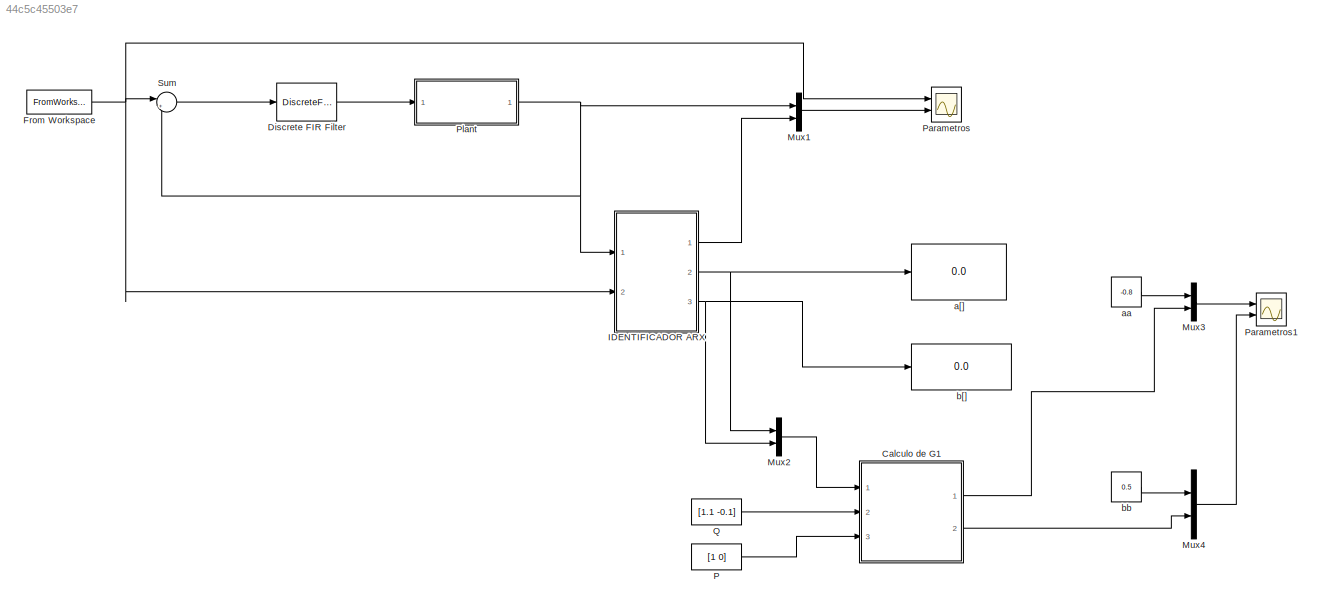
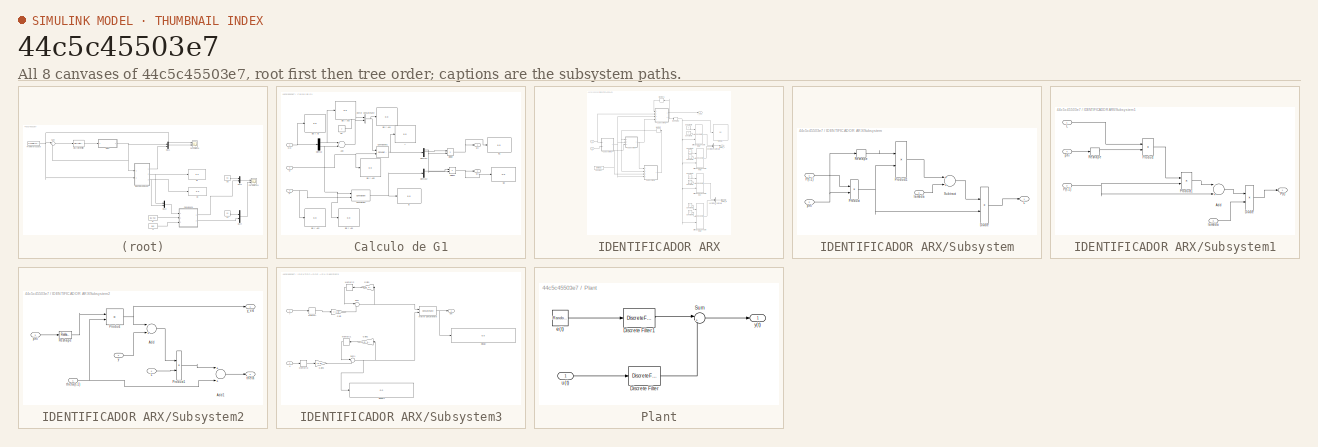
[diagram: thumbnail index - all 8 canvases of the model, root first then tree order]
MODEL slx_44c5c45503e7
KIND model
CONFIG AbsTol = auto
CONFIG FixedStep = auto
CONFIG MaxStep = auto
CONFIG MinStep = auto
CONFIG RelTol = 1e-3
CONFIG SampleTimeConstraint = Unconstrained
CONFIG Solver = ode45
CONFIG SolverMode = Auto
CONFIG SolverName = ode45
CONFIG StartTime = 0.0
CONFIG StopTime = 1000
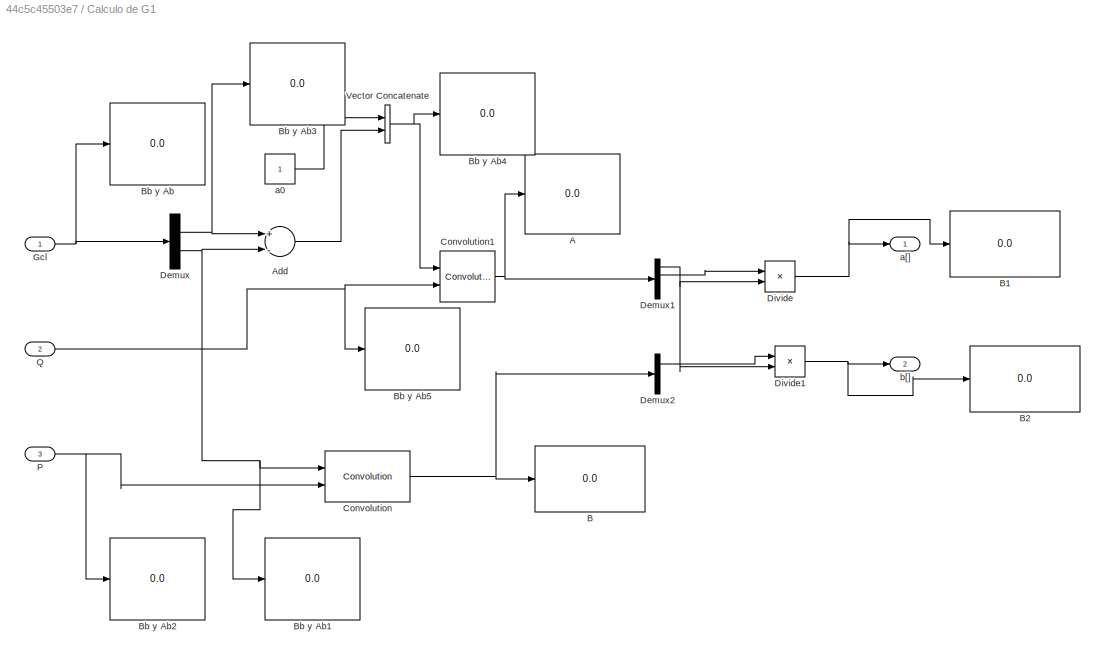
BLOCK [SubSystem] Calculo de G1
  Ports = [3, 2]
  RequestExecContextInheritance = off
BLOCK [Display] Calculo de G1/A
  Decimation = 1
  Ports = [1]
BLOCK [Sum] Calculo de G1/Add
  InputSameDT = off
  Inputs = +-
  OutDataTypeStr = Inherit: Inherit via internal rule
  Ports = [2, 1]
  SaturateOnIntegerOverflow = off
BLOCK [Display] Calculo de G1/B
  Decimation = 1
  Ports = [1]
BLOCK [Display] Calculo de G1/B1
  Decimation = 1
  Ports = [1]
BLOCK [Display] Calculo de G1/B2
  Decimation = 1
  Ports = [1]
BLOCK [Display] Calculo de G1/Bb y Ab
  Decimation = 1
  Ports = [1]
BLOCK [Display] Calculo de G1/Bb y Ab1
  Decimation = 1
  Ports = [1]
BLOCK [Display] Calculo de G1/Bb y Ab2
  Decimation = 1
  Ports = [1]
BLOCK [Display] Calculo de G1/Bb y Ab3
  Decimation = 1
  Ports = [1]
BLOCK [Display] Calculo de G1/Bb y Ab4
  Decimation = 1
  Ports = [1]
BLOCK [Display] Calculo de G1/Bb y Ab5
  Decimation = 1
  Ports = [1]
BLOCK [Reference] Calculo de G1/Convolution  REF=dspsigops/Convolution
  LockScale = off
  Ports = [2, 1]
  SourceBlock = dspsigops/Convolution
  SourceType = Convolution
  accumDataTypeStr = Inherit: Inherit via internal rule
  accumFracLength = 30
  accumLastDataTypeStr = Inherit: Inherit via internal rule
  accumMode = Inherit via internal rule
  accumWordLength = 32
  additionalParams = off
  allowOverrides = on
  domain = Time
  outputDataTypeStr = Inherit: Same as accumulator
  outputFracLength = 15
  outputLastDataTypeStr = Inherit: Same as accumulator
  outputMax = []
  outputMin = []
  outputMode = Same as accumulator
  outputWordLength = 16
  overflowMode = off
  prodOutputDataTypeStr = Inherit: Inherit via internal rule
  prodOutputFracLength = 30
  prodOutputLastDataTypeStr = Inherit: Inherit via internal rule
  prodOutputMode = Inherit via internal rule
  prodOutputWordLength = 32
  roundingMode = Floor
BLOCK [Reference] Calculo de G1/Convolution1  REF=dspsigops/Convolution
  LockScale = off
  Ports = [2, 1]
  SourceBlock = dspsigops/Convolution
  SourceType = Convolution
  accumDataTypeStr = Inherit: Inherit via internal rule
  accumFracLength = 30
  accumLastDataTypeStr = Inherit: Inherit via internal rule
  accumMode = Inherit via internal rule
  accumWordLength = 32
  additionalParams = off
  allowOverrides = on
  domain = Time
  outputDataTypeStr = Inherit: Same as accumulator
  outputFracLength = 15
  outputLastDataTypeStr = Inherit: Same as accumulator
  outputMax = []
  outputMin = []
  outputMode = Same as accumulator
  outputWordLength = 16
  overflowMode = off
  prodOutputDataTypeStr = Inherit: Inherit via internal rule
  prodOutputFracLength = 30
  prodOutputLastDataTypeStr = Inherit: Inherit via internal rule
  prodOutputMode = Inherit via internal rule
  prodOutputWordLength = 32
  roundingMode = Floor
BLOCK [Demux] Calculo de G1/Demux
  DisplayOption = bar
  Outputs = 2
  Ports = [1, 2]
BLOCK [Demux] Calculo de G1/Demux1
  DisplayOption = bar
  Ports = [1, 4]
BLOCK [Demux] Calculo de G1/Demux2
  DisplayOption = bar
  Outputs = 3
  Ports = [1, 3]
BLOCK [Product] Calculo de G1/Divide
  InputSameDT = off
  Inputs = */
  OutDataTypeStr = Inherit: Inherit via internal rule
  Ports = [2, 1]
  RndMeth = Floor
  SaturateOnIntegerOverflow = off
BLOCK [Product] Calculo de G1/Divide1
  InputSameDT = off
  Inputs = */
  OutDataTypeStr = Inherit: Inherit via internal rule
  Ports = [2, 1]
  RndMeth = Floor
  SaturateOnIntegerOverflow = off
BLOCK [Inport] Calculo de G1/Gcl
  IconDisplay = Port number
BLOCK [Inport] Calculo de G1/P
  IconDisplay = Port number
  Port = 3
BLOCK [Inport] Calculo de G1/Q
  IconDisplay = Port number
  Port = 2
BLOCK [Concatenate] Calculo de G1/Vector Concatenate
  Ports = [2, 1]
BLOCK [Constant] Calculo de G1/a0
BLOCK [Outport] Calculo de G1/a[]
  IconDisplay = Port number
BLOCK [Outport] Calculo de G1/b[]
  IconDisplay = Port number
  Port = 2
BLOCK [DiscreteFir] Discrete FIR Filter
  Coefficients = [1.1 -0.1]
  Ports = [1, 1]
  SampleTime = 0.1
BLOCK [FromWorkspace] From Workspace
  VariableName = prbs
  ZeroCross = on
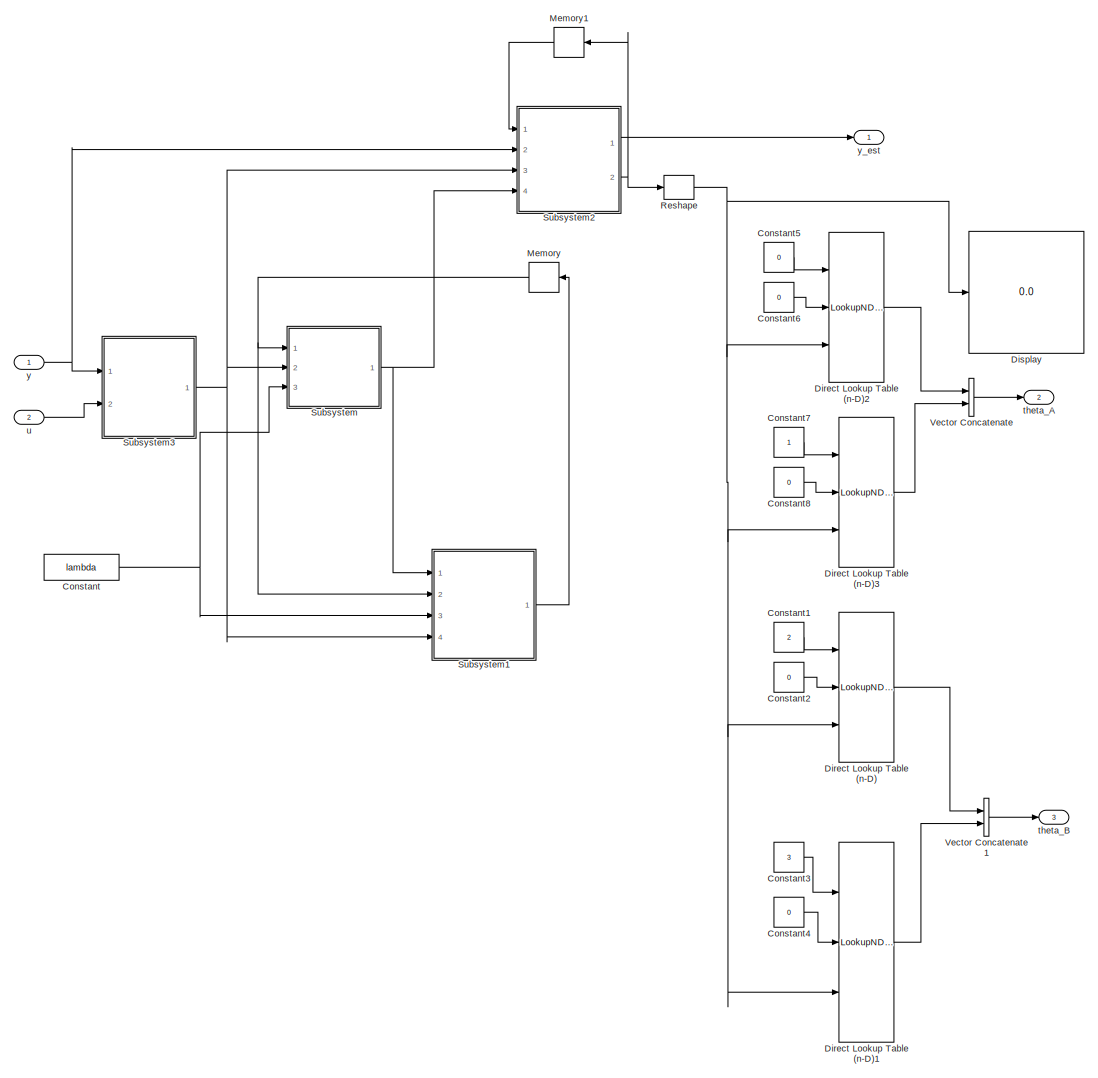
[diagram: IDENTIFICADOR ARX - part 1/1, most of the canvas]
BLOCK [SubSystem] IDENTIFICADOR ARX
  Ports = [2, 3]
  RequestExecContextInheritance = off
BLOCK [Constant] IDENTIFICADOR ARX/Constant
  Value = lambda
BLOCK [Constant] IDENTIFICADOR ARX/Constant1
  Value = 2
BLOCK [Constant] IDENTIFICADOR ARX/Constant2
  Value = 0
BLOCK [Constant] IDENTIFICADOR ARX/Constant3
  Value = 3
BLOCK [Constant] IDENTIFICADOR ARX/Constant4
  Value = 0
BLOCK [Constant] IDENTIFICADOR ARX/Constant5
  Value = 0
BLOCK [Constant] IDENTIFICADOR ARX/Constant6
  Value = 0
BLOCK [Constant] IDENTIFICADOR ARX/Constant7
BLOCK [Constant] IDENTIFICADOR ARX/Constant8
  Value = 0
BLOCK [LookupNDDirect] IDENTIFICADOR ARX/Direct Lookup Table (n-D)
  DiagnosticForOutOfRangeInput = Error
  Ports = [3, 1]
  Table = [4 5 ;16 19 ]
  TableIsInput = on
BLOCK [LookupNDDirect] IDENTIFICADOR ARX/Direct Lookup Table (n-D)1
  DiagnosticForOutOfRangeInput = Error
  Ports = [3, 1]
  Table = [4 5 ;16 19 ]
  TableIsInput = on
BLOCK [LookupNDDirect] IDENTIFICADOR ARX/Direct Lookup Table (n-D)2
  DiagnosticForOutOfRangeInput = Error
  Ports = [3, 1]
  Table = [4 5 ;16 19 ]
  TableIsInput = on
BLOCK [LookupNDDirect] IDENTIFICADOR ARX/Direct Lookup Table (n-D)3
  DiagnosticForOutOfRangeInput = Error
  Ports = [3, 1]
  Table = [4 5 ;16 19 ]
  TableIsInput = on
BLOCK [Display] IDENTIFICADOR ARX/Display
  Decimation = 1
  Ports = [1]
BLOCK [Memory] IDENTIFICADOR ARX/Memory
  X0 = 1e6*eye(4)
BLOCK [Memory] IDENTIFICADOR ARX/Memory1
BLOCK [Reshape] IDENTIFICADOR ARX/Reshape
  OutputDimensionality = Column vector (2-D)
  Ports = [1, 1]
BLOCK [SubSystem] IDENTIFICADOR ARX/Subsystem
  Ports = [3, 1]
  RequestExecContextInheritance = off
BLOCK [Product] IDENTIFICADOR ARX/Subsystem/Divide
  InputSameDT = off
  Inputs = /*
  OutDataTypeStr = Inherit: Inherit via internal rule
  Ports = [2, 1]
  RndMeth = Floor
  SaturateOnIntegerOverflow = off
BLOCK [Outport] IDENTIFICADOR ARX/Subsystem/L
  IconDisplay = Port number
BLOCK [Inport] IDENTIFICADOR ARX/Subsystem/P(t-1)
  IconDisplay = Port number
BLOCK [Product] IDENTIFICADOR ARX/Subsystem/Product
  InputSameDT = off
  Multiplication = Matrix(*)
  OutDataTypeStr = Inherit: Inherit via internal rule
  Ports = [2, 1]
  RndMeth = Floor
  SaturateOnIntegerOverflow = off
BLOCK [Product] IDENTIFICADOR ARX/Subsystem/Product1
  InputSameDT = off
  Multiplication = Matrix(*)
  OutDataTypeStr = Inherit: Inherit via internal rule
  Ports = [2, 1]
  RndMeth = Floor
  SaturateOnIntegerOverflow = off
BLOCK [Reshape] IDENTIFICADOR ARX/Subsystem/Reshape
  OutputDimensionality = Row vector (2-D)
  Ports = [1, 1]
BLOCK [Sum] IDENTIFICADOR ARX/Subsystem/Subtract
  InputSameDT = off
  OutDataTypeStr = Inherit: Inherit via internal rule
  Ports = [2, 1]
  SaturateOnIntegerOverflow = off
BLOCK [Inport] IDENTIFICADOR ARX/Subsystem/lambda
  IconDisplay = Port number
  Port = 3
BLOCK [Inport] IDENTIFICADOR ARX/Subsystem/phi
  IconDisplay = Port number
  Port = 2
BLOCK [SubSystem] IDENTIFICADOR ARX/Subsystem1
  Ports = [4, 1]
  RequestExecContextInheritance = off
BLOCK [Sum] IDENTIFICADOR ARX/Subsystem1/Add
  InputSameDT = off
  Inputs = -+
  OutDataTypeStr = Inherit: Inherit via internal rule
  Ports = [2, 1]
  SaturateOnIntegerOverflow = off
BLOCK [Product] IDENTIFICADOR ARX/Subsystem1/Divide
  InputSameDT = off
  Inputs = */
  OutDataTypeStr = Inherit: Inherit via internal rule
  Ports = [2, 1]
  RndMeth = Floor
  SaturateOnIntegerOverflow = off
BLOCK [Inport] IDENTIFICADOR ARX/Subsystem1/L
  IconDisplay = Port number
BLOCK [Outport] IDENTIFICADOR ARX/Subsystem1/P(t)
  IconDisplay = Port number
BLOCK [Inport] IDENTIFICADOR ARX/Subsystem1/P(t-1)
  IconDisplay = Port number
  Port = 2
BLOCK [Product] IDENTIFICADOR ARX/Subsystem1/Product
  InputSameDT = off
  Multiplication = Matrix(*)
  OutDataTypeStr = Inherit: Inherit via internal rule
  Ports = [2, 1]
  RndMeth = Floor
  SaturateOnIntegerOverflow = off
BLOCK [Product] IDENTIFICADOR ARX/Subsystem1/Product1
  InputSameDT = off
  Multiplication = Matrix(*)
  OutDataTypeStr = Inherit: Inherit via internal rule
  Ports = [2, 1]
  RndMeth = Floor
  SaturateOnIntegerOverflow = off
BLOCK [Reshape] IDENTIFICADOR ARX/Subsystem1/Reshape
  OutputDimensionality = Row vector (2-D)
  Ports = [1, 1]
BLOCK [Inport] IDENTIFICADOR ARX/Subsystem1/lambda
  IconDisplay = Port number
  Port = 3
BLOCK [Inport] IDENTIFICADOR ARX/Subsystem1/phi
  IconDisplay = Port number
  Port = 4
BLOCK [SubSystem] IDENTIFICADOR ARX/Subsystem2
  Ports = [4, 2]
  RequestExecContextInheritance = off
BLOCK [Sum] IDENTIFICADOR ARX/Subsystem2/Add
  InputSameDT = off
  Inputs = -+
  OutDataTypeStr = Inherit: Inherit via internal rule
  Ports = [2, 1]
  SaturateOnIntegerOverflow = off
BLOCK [Sum] IDENTIFICADOR ARX/Subsystem2/Add1
  InputSameDT = off
  OutDataTypeStr = Inherit: Inherit via internal rule
  Ports = [2, 1]
  SaturateOnIntegerOverflow = off
BLOCK [Inport] IDENTIFICADOR ARX/Subsystem2/L
  IconDisplay = Port number
  Port = 4
BLOCK [Product] IDENTIFICADOR ARX/Subsystem2/Product
  InputSameDT = off
  Multiplication = Matrix(*)
  OutDataTypeStr = Inherit: Inherit via internal rule
  Ports = [2, 1]
  RndMeth = Floor
  SaturateOnIntegerOverflow = off
BLOCK [Product] IDENTIFICADOR ARX/Subsystem2/Product1
  InputSameDT = off
  OutDataTypeStr = Inherit: Inherit via internal rule
  Ports = [2, 1]
  RndMeth = Floor
  SaturateOnIntegerOverflow = off
BLOCK [Reshape] IDENTIFICADOR ARX/Subsystem2/Reshape
  OutputDimensionality = Row vector (2-D)
  Ports = [1, 1]
BLOCK [Inport] IDENTIFICADOR ARX/Subsystem2/phi
  IconDisplay = Port number
  Port = 3
BLOCK [Outport] IDENTIFICADOR ARX/Subsystem2/theta
  IconDisplay = Port number
  Port = 2
BLOCK [Inport] IDENTIFICADOR ARX/Subsystem2/theta(t-1)
  IconDisplay = Port number
BLOCK [Inport] IDENTIFICADOR ARX/Subsystem2/y
  IconDisplay = Port number
  Port = 2
BLOCK [Outport] IDENTIFICADOR ARX/Subsystem2/y_est
  IconDisplay = Port number
BLOCK [SubSystem] IDENTIFICADOR ARX/Subsystem3
  Ports = [2, 1]
  RequestExecContextInheritance = off
BLOCK [Display] IDENTIFICADOR ARX/Subsystem3/Display
  Decimation = 1
  Ports = [1]
BLOCK [Display] IDENTIFICADOR ARX/Subsystem3/Display1
  Decimation = 1
  Ports = [1]
BLOCK [Gain] IDENTIFICADOR ARX/Subsystem3/Gain
  Gain = [-1 0]'
  Multiplication = Matrix(K*u)
  OutDataTypeStr = Inherit: Inherit via internal rule
  ParamDataTypeStr = Inherit: Inherit via internal rule
  SaturateOnIntegerOverflow = off
BLOCK [Gain] IDENTIFICADOR ARX/Subsystem3/Gain1
  Gain = [0 0; 1 0]
  Multiplication = Matrix(K*u)
  OutDataTypeStr = Inherit: Inherit via internal rule
  ParamDataTypeStr = Inherit: Inherit via internal rule
  SaturateOnIntegerOverflow = off
BLOCK [Gain] IDENTIFICADOR ARX/Subsystem3/Gain2
  Gain = [0 0; 1 0]
  Multiplication = Matrix(K*u)
  OutDataTypeStr = Inherit: Inherit via internal rule
  ParamDataTypeStr = Inherit: Inherit via internal rule
  SaturateOnIntegerOverflow = off
BLOCK [Gain] IDENTIFICADOR ARX/Subsystem3/Gain3
  Gain = [1 0]'
  Multiplication = Matrix(K*u)
  OutDataTypeStr = Inherit: Inherit via internal rule
  ParamDataTypeStr = Inherit: Inherit via internal rule
  SaturateOnIntegerOverflow = off
BLOCK [Concatenate] IDENTIFICADOR ARX/Subsystem3/Matrix Concatenate
  Mode = Multidimensional array
  Ports = [2, 1]
BLOCK [Memory] IDENTIFICADOR ARX/Subsystem3/Memory
BLOCK [Memory] IDENTIFICADOR ARX/Subsystem3/Memory1
BLOCK [Memory] IDENTIFICADOR ARX/Subsystem3/Memory2
BLOCK [Memory] IDENTIFICADOR ARX/Subsystem3/Memory3
BLOCK [Sum] IDENTIFICADOR ARX/Subsystem3/Sum
  IconShape = round
  InputSameDT = off
  Inputs = |++
  OutDataTypeStr = Inherit: Inherit via internal rule
  Ports = [2, 1]
  SaturateOnIntegerOverflow = off
BLOCK [Sum] IDENTIFICADOR ARX/Subsystem3/Sum1
  IconShape = round
  InputSameDT = off
  Inputs = |++
  OutDataTypeStr = Inherit: Inherit via internal rule
  Ports = [2, 1]
  SaturateOnIntegerOverflow = off
BLOCK [Outport] IDENTIFICADOR ARX/Subsystem3/phi
  IconDisplay = Port number
BLOCK [Inport] IDENTIFICADOR ARX/Subsystem3/u
  IconDisplay = Port number
  Port = 2
BLOCK [Inport] IDENTIFICADOR ARX/Subsystem3/y
  IconDisplay = Port number
BLOCK [Concatenate] IDENTIFICADOR ARX/Vector Concatenate
  Ports = [2, 1]
BLOCK [Concatenate] IDENTIFICADOR ARX/Vector Concatenate1
  Ports = [2, 1]
BLOCK [Outport] IDENTIFICADOR ARX/theta_A
  IconDisplay = Port number
  Port = 2
BLOCK [Outport] IDENTIFICADOR ARX/theta_B
  IconDisplay = Port number
  Port = 3
BLOCK [Inport] IDENTIFICADOR ARX/u
  IconDisplay = Port number
  Port = 2
BLOCK [Inport] IDENTIFICADOR ARX/y
  IconDisplay = Port number
BLOCK [Outport] IDENTIFICADOR ARX/y_est
  IconDisplay = Port number
BLOCK [Mux] Mux1
  DisplayOption = bar
  Inputs = 2
  Ports = [2, 1]
BLOCK [Mux] Mux2
  DisplayOption = bar
  Inputs = 2
  Ports = [2, 1]
BLOCK [Mux] Mux3
  DisplayOption = bar
  Inputs = 2
  Ports = [2, 1]
BLOCK [Mux] Mux4
  DisplayOption = bar
  Inputs = 2
  Ports = [2, 1]
BLOCK [Constant] P
  Value = [1 0]
BLOCK [Scope] Parametros
  DataFormat = StructureWithTime
  Floating = off
  LimitDataPoints = off
  NumInputPorts = 2
  Ports = [2]
  SampleTime = 0
  TimeRange = 100
  YMax = 5~10
  YMin = 0~-0.5
BLOCK [Scope] Parametros1
  DataFormat = StructureWithTime
  Floating = off
  NumInputPorts = 2
  Ports = [2]
  SampleTime = 0
  SaveName = ScopeData1
  YMax = 5~5
  YMin = -5~-5
BLOCK [SubSystem] Plant
  Ports = [1, 1]
  RequestExecContextInheritance = off
BLOCK [DiscreteFilter] Plant/Discrete Filter
  Denominator = [1 -0.8]
  InputPortMap = u0
  Numerator = [0.5]
  Ports = [1, 1]
BLOCK [DiscreteFilter] Plant/Discrete Filter1
  Denominator = [1]
  InputPortMap = u0
  Ports = [1, 1]
  SampleTime = 0.1
BLOCK [Sum] Plant/Sum
  IconShape = round
  InputSameDT = off
  Inputs = |++
  OutDataTypeStr = Inherit: Inherit via internal rule
  Ports = [2, 1]
  SaturateOnIntegerOverflow = off
BLOCK [RandomNumber] Plant/e(t)
  Variance = 0.003
BLOCK [Inport] Plant/u(t)
  IconDisplay = Port number
BLOCK [Outport] Plant/y(t)
  IconDisplay = Port number
BLOCK [Constant] Q
  Value = [1.1 -0.1]
BLOCK [Sum] Sum
  IconShape = round
  InputSameDT = off
  Inputs = |+-
  OutDataTypeStr = Inherit: Inherit via internal rule
  Ports = [2, 1]
  SaturateOnIntegerOverflow = off
BLOCK [Display] a[]
  Decimation = 1
  Ports = [1]
BLOCK [Constant] aa
  Value = -0.8
BLOCK [Display] b[]
  Decimation = 1
  Ports = [1]
BLOCK [Constant] bb
  Value = 0.5
LINE Calculo de G1/Add:1 -> Calculo de G1/Vector Concatenate:2
NET Calculo de G1/Convolution1:1 -> Calculo de G1/A:1, Calculo de G1/Demux1:1
NET Calculo de G1/Convolution:1 -> Calculo de G1/B:1, Calculo de G1/Demux2:1
NET Calculo de G1/Demux1:1 -> Calculo de G1/Divide1:2, Calculo de G1/Divide:2
LINE Calculo de G1/Demux1:2 -> Calculo de G1/Divide:1
LINE Calculo de G1/Demux2:1 -> Calculo de G1/Divide1:1
NET Calculo de G1/Demux:1 -> Calculo de G1/Add:1, Calculo de G1/Bb y Ab3:1
NET Calculo de G1/Demux:2 -> Calculo de G1/Add:2, Calculo de G1/Bb y Ab1:1, Calculo de G1/Convolution:1
NET Calculo de G1/Divide1:1 -> Calculo de G1/B2:1, Calculo de G1/b[]:1
NET Calculo de G1/Divide:1 -> Calculo de G1/B1:1, Calculo de G1/a[]:1
NET Calculo de G1/Gcl:1 -> Calculo de G1/Bb y Ab:1, Calculo de G1/Demux:1
NET Calculo de G1/P:1 -> Calculo de G1/Bb y Ab2:1, Calculo de G1/Convolution:2
NET Calculo de G1/Q:1 -> Calculo de G1/Bb y Ab5:1, Calculo de G1/Convolution1:2
NET Calculo de G1/Vector Concatenate:1 -> Calculo de G1/Bb y Ab4:1, Calculo de G1/Convolution1:1
LINE Calculo de G1/a0:1 -> Calculo de G1/Vector Concatenate:1
LINE Calculo de G1:1 -> Mux3:2
LINE Calculo de G1:2 -> Mux4:2
LINE Discrete FIR Filter:1 -> Plant:1
NET From Workspace:1 -> IDENTIFICADOR ARX:2, Parametros:1, Sum:1
LINE IDENTIFICADOR ARX/Constant1:1 -> IDENTIFICADOR ARX/Direct Lookup Table (n-D):1
LINE IDENTIFICADOR ARX/Constant2:1 -> IDENTIFICADOR ARX/Direct Lookup Table (n-D):2
LINE IDENTIFICADOR ARX/Constant3:1 -> IDENTIFICADOR ARX/Direct Lookup Table (n-D)1:1
LINE IDENTIFICADOR ARX/Constant4:1 -> IDENTIFICADOR ARX/Direct Lookup Table (n-D)1:2
LINE IDENTIFICADOR ARX/Constant5:1 -> IDENTIFICADOR ARX/Direct Lookup Table (n-D)2:1
LINE IDENTIFICADOR ARX/Constant6:1 -> IDENTIFICADOR ARX/Direct Lookup Table (n-D)2:2
LINE IDENTIFICADOR ARX/Constant7:1 -> IDENTIFICADOR ARX/Direct Lookup Table (n-D)3:1
LINE IDENTIFICADOR ARX/Constant8:1 -> IDENTIFICADOR ARX/Direct Lookup Table (n-D)3:2
NET IDENTIFICADOR ARX/Constant:1 -> IDENTIFICADOR ARX/Subsystem1:3, IDENTIFICADOR ARX/Subsystem:3
LINE IDENTIFICADOR ARX/Direct Lookup Table (n-D)1:1 -> IDENTIFICADOR ARX/Vector Concatenate1:2
LINE IDENTIFICADOR ARX/Direct Lookup Table (n-D)2:1 -> IDENTIFICADOR ARX/Vector Concatenate:1
LINE IDENTIFICADOR ARX/Direct Lookup Table (n-D)3:1 -> IDENTIFICADOR ARX/Vector Concatenate:2
LINE IDENTIFICADOR ARX/Direct Lookup Table (n-D):1 -> IDENTIFICADOR ARX/Vector Concatenate1:1
LINE IDENTIFICADOR ARX/Memory1:1 -> IDENTIFICADOR ARX/Subsystem2:1
NET IDENTIFICADOR ARX/Memory:1 -> IDENTIFICADOR ARX/Subsystem1:2, IDENTIFICADOR ARX/Subsystem:1
NET IDENTIFICADOR ARX/Reshape:1 -> IDENTIFICADOR ARX/Direct Lookup Table (n-D)1:3, IDENTIFICADOR ARX/Direct Lookup Table (n-D)2:3, IDENTIFICADOR ARX/Direct Lookup Table (n-D)3:3, IDENTIFICADOR ARX/Direct Lookup Table (n-D):3, IDENTIFICADOR ARX/Display:1
LINE IDENTIFICADOR ARX/Subsystem/Divide:1 -> IDENTIFICADOR ARX/Subsystem/L:1
LINE IDENTIFICADOR ARX/Subsystem/P(t-1):1 -> IDENTIFICADOR ARX/Subsystem/Product:1
LINE IDENTIFICADOR ARX/Subsystem/Product1:1 -> IDENTIFICADOR ARX/Subsystem/Subtract:1
NET IDENTIFICADOR ARX/Subsystem/Product:1 -> IDENTIFICADOR ARX/Subsystem/Divide:2, IDENTIFICADOR ARX/Subsystem/Product1:2
LINE IDENTIFICADOR ARX/Subsystem/Reshape:1 -> IDENTIFICADOR ARX/Subsystem/Product1:1
LINE IDENTIFICADOR ARX/Subsystem/Subtract:1 -> IDENTIFICADOR ARX/Subsystem/Divide:1
LINE IDENTIFICADOR ARX/Subsystem/lambda:1 -> IDENTIFICADOR ARX/Subsystem/Subtract:2
NET IDENTIFICADOR ARX/Subsystem/phi:1 -> IDENTIFICADOR ARX/Subsystem/Product:2, IDENTIFICADOR ARX/Subsystem/Reshape:1
LINE IDENTIFICADOR ARX/Subsystem1/Add:1 -> IDENTIFICADOR ARX/Subsystem1/Divide:1
LINE IDENTIFICADOR ARX/Subsystem1/Divide:1 -> IDENTIFICADOR ARX/Subsystem1/P(t):1
LINE IDENTIFICADOR ARX/Subsystem1/L:1 -> IDENTIFICADOR ARX/Subsystem1/Product:1
NET IDENTIFICADOR ARX/Subsystem1/P(t-1):1 -> IDENTIFICADOR ARX/Subsystem1/Add:2, IDENTIFICADOR ARX/Subsystem1/Product1:2
LINE IDENTIFICADOR ARX/Subsystem1/Product1:1 -> IDENTIFICADOR ARX/Subsystem1/Add:1
LINE IDENTIFICADOR ARX/Subsystem1/Product:1 -> IDENTIFICADOR ARX/Subsystem1/Product1:1
LINE IDENTIFICADOR ARX/Subsystem1/Reshape:1 -> IDENTIFICADOR ARX/Subsystem1/Product:2
LINE IDENTIFICADOR ARX/Subsystem1/lambda:1 -> IDENTIFICADOR ARX/Subsystem1/Divide:2
LINE IDENTIFICADOR ARX/Subsystem1/phi:1 -> IDENTIFICADOR ARX/Subsystem1/Reshape:1
LINE IDENTIFICADOR ARX/Subsystem1:1 -> IDENTIFICADOR ARX/Memory:1
LINE IDENTIFICADOR ARX/Subsystem2/Add1:1 -> IDENTIFICADOR ARX/Subsystem2/theta:1
LINE IDENTIFICADOR ARX/Subsystem2/Add:1 -> IDENTIFICADOR ARX/Subsystem2/Product1:1
LINE IDENTIFICADOR ARX/Subsystem2/L:1 -> IDENTIFICADOR ARX/Subsystem2/Product1:2
LINE IDENTIFICADOR ARX/Subsystem2/Product1:1 -> IDENTIFICADOR ARX/Subsystem2/Add1:1
NET IDENTIFICADOR ARX/Subsystem2/Product:1 -> IDENTIFICADOR ARX/Subsystem2/Add:1, IDENTIFICADOR ARX/Subsystem2/y_est:1
LINE IDENTIFICADOR ARX/Subsystem2/Reshape:1 -> IDENTIFICADOR ARX/Subsystem2/Product:1
LINE IDENTIFICADOR ARX/Subsystem2/phi:1 -> IDENTIFICADOR ARX/Subsystem2/Reshape:1
NET IDENTIFICADOR ARX/Subsystem2/theta(t-1):1 -> IDENTIFICADOR ARX/Subsystem2/Add1:2, IDENTIFICADOR ARX/Subsystem2/Product:2
LINE IDENTIFICADOR ARX/Subsystem2/y:1 -> IDENTIFICADOR ARX/Subsystem2/Add:2
LINE IDENTIFICADOR ARX/Subsystem2:1 -> IDENTIFICADOR ARX/y_est:1
NET IDENTIFICADOR ARX/Subsystem2:2 -> IDENTIFICADOR ARX/Memory1:1, IDENTIFICADOR ARX/Reshape:1
LINE IDENTIFICADOR ARX/Subsystem3/Gain1:1 -> IDENTIFICADOR ARX/Subsystem3/Memory2:1
LINE IDENTIFICADOR ARX/Subsystem3/Gain2:1 -> IDENTIFICADOR ARX/Subsystem3/Memory1:1
LINE IDENTIFICADOR ARX/Subsystem3/Gain3:1 -> IDENTIFICADOR ARX/Subsystem3/Sum1:2
LINE IDENTIFICADOR ARX/Subsystem3/Gain:1 -> IDENTIFICADOR ARX/Subsystem3/Sum:2
NET IDENTIFICADOR ARX/Subsystem3/Matrix Concatenate:1 -> IDENTIFICADOR ARX/Subsystem3/Display:1, IDENTIFICADOR ARX/Subsystem3/phi:1
LINE IDENTIFICADOR ARX/Subsystem3/Memory1:1 -> IDENTIFICADOR ARX/Subsystem3/Sum1:1
LINE IDENTIFICADOR ARX/Subsystem3/Memory2:1 -> IDENTIFICADOR ARX/Subsystem3/Sum:1
LINE IDENTIFICADOR ARX/Subsystem3/Memory3:1 -> IDENTIFICADOR ARX/Subsystem3/Gain3:1
LINE IDENTIFICADOR ARX/Subsystem3/Memory:1 -> IDENTIFICADOR ARX/Subsystem3/Gain:1
NET IDENTIFICADOR ARX/Subsystem3/Sum1:1 -> IDENTIFICADOR ARX/Subsystem3/Display1:1, IDENTIFICADOR ARX/Subsystem3/Gain2:1, IDENTIFICADOR ARX/Subsystem3/Matrix Concatenate:2
NET IDENTIFICADOR ARX/Subsystem3/Sum:1 -> IDENTIFICADOR ARX/Subsystem3/Gain1:1, IDENTIFICADOR ARX/Subsystem3/Matrix Concatenate:1
LINE IDENTIFICADOR ARX/Subsystem3/u:1 -> IDENTIFICADOR ARX/Subsystem3/Memory3:1
LINE IDENTIFICADOR ARX/Subsystem3/y:1 -> IDENTIFICADOR ARX/Subsystem3/Memory:1
NET IDENTIFICADOR ARX/Subsystem3:1 -> IDENTIFICADOR ARX/Subsystem1:4, IDENTIFICADOR ARX/Subsystem2:3, IDENTIFICADOR ARX/Subsystem:2
NET IDENTIFICADOR ARX/Subsystem:1 -> IDENTIFICADOR ARX/Subsystem1:1, IDENTIFICADOR ARX/Subsystem2:4
LINE IDENTIFICADOR ARX/Vector Concatenate1:1 -> IDENTIFICADOR ARX/theta_B:1
LINE IDENTIFICADOR ARX/Vector Concatenate:1 -> IDENTIFICADOR ARX/theta_A:1
LINE IDENTIFICADOR ARX/u:1 -> IDENTIFICADOR ARX/Subsystem3:2
NET IDENTIFICADOR ARX/y:1 -> IDENTIFICADOR ARX/Subsystem2:2, IDENTIFICADOR ARX/Subsystem3:1
LINE IDENTIFICADOR ARX:1 -> Mux1:2
NET IDENTIFICADOR ARX:2 -> Mux2:1, a[]:1
NET IDENTIFICADOR ARX:3 -> Mux2:2, b[]:1
LINE Mux1:1 -> Parametros:2
LINE Mux2:1 -> Calculo de G1:1
LINE Mux3:1 -> Parametros1:1
LINE Mux4:1 -> Parametros1:2
LINE P:1 -> Calculo de G1:3
LINE Plant/Discrete Filter1:1 -> Plant/Sum:1
LINE Plant/Discrete Filter:1 -> Plant/Sum:2
LINE Plant/Sum:1 -> Plant/y(t):1
LINE Plant/e(t):1 -> Plant/Discrete Filter1:1
LINE Plant/u(t):1 -> Plant/Discrete Filter:1
NET Plant:1 -> IDENTIFICADOR ARX:1, Mux1:1, Sum:2
LINE Q:1 -> Calculo de G1:2
LINE Sum:1 -> Discrete FIR Filter:1
LINE aa:1 -> Mux3:1
LINE bb:1 -> Mux4:1
note: NET lines group one-source signal fan-out (src -> all destinations, sorted); 1:1 wires keep LINE
